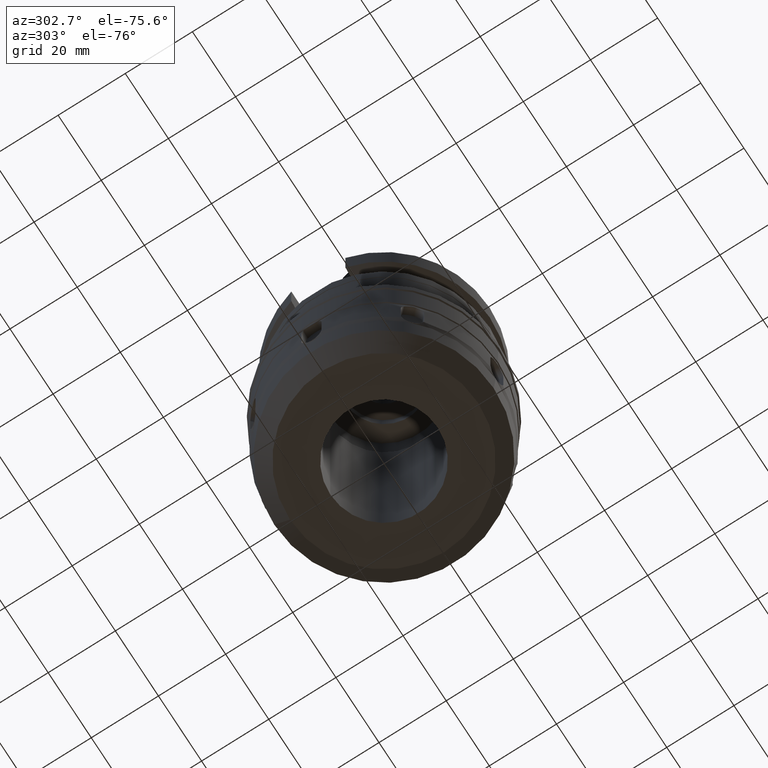
[diagram: clean part render]
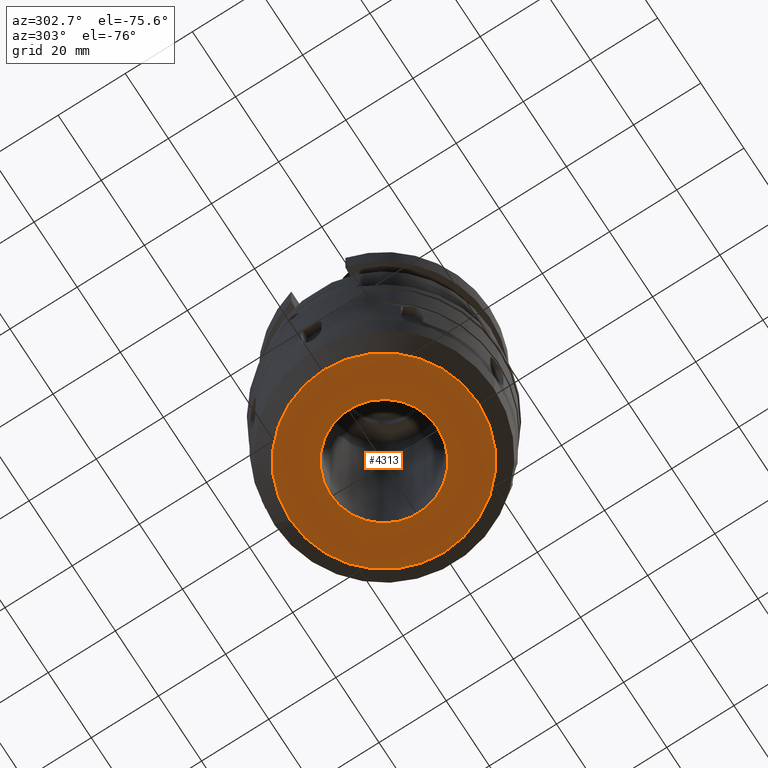
[diagram: same view with one face highlighted and labeled with its STEP entity id]
A machine part, auxiliary view. The second image highlights one B-rep face of the part: STEP entity #4313.
In plain terms, the highlighted planar face has unit normal (0, 0, -1).
Its self-contained STEP definition (entity closure, byte-faithful):
#2158=CARTESIAN_POINT('',(0.E0,0.E0,-9.E1));
#2159=DIRECTION('',(0.E0,0.E0,1.E0));
#2160=DIRECTION('',(0.E0,-1.E0,0.E0));
#2161=AXIS2_PLACEMENT_3D('',#2158,#2159,#2160);
#2166=CARTESIAN_POINT('',(0.E0,0.E0,-9.E1));
#2167=DIRECTION('',(0.E0,0.E0,1.E0));
#2168=DIRECTION('',(0.E0,1.E0,0.E0));
#2169=AXIS2_PLACEMENT_3D('',#2166,#2167,#2168);
#2174=CARTESIAN_POINT('',(0.E0,2.120720862083E-14,-9.E1));
#2175=DIRECTION('',(0.E0,0.E0,-1.E0));
#2176=DIRECTION('',(0.E0,-1.E0,0.E0));
#2177=AXIS2_PLACEMENT_3D('',#2174,#2175,#2176);
#2182=CARTESIAN_POINT('',(0.E0,2.120720862083E-14,-9.E1));
#2183=DIRECTION('',(0.E0,0.E0,-1.E0));
#2184=DIRECTION('',(0.E0,1.E0,0.E0));
#2185=AXIS2_PLACEMENT_3D('',#2182,#2183,#2184);
#2542=CARTESIAN_POINT('',(0.E0,1.6E1,-9.E1));
#2543=VERTEX_POINT('',#2542);
#2544=CARTESIAN_POINT('',(0.E0,-1.6E1,-9.E1));
#2545=VERTEX_POINT('',#2544);
#2546=CARTESIAN_POINT('',(0.E0,-2.8E1,-9.E1));
#2547=CARTESIAN_POINT('',(0.E0,2.8E1,-9.E1));
#2548=VERTEX_POINT('',#2546);
#2549=VERTEX_POINT('',#2547);
#4298=CARTESIAN_POINT('',(0.E0,0.E0,-9.E1));
#4299=DIRECTION('',(0.E0,0.E0,-1.E0));
#4300=DIRECTION('',(0.E0,-1.E0,0.E0));
#4301=AXIS2_PLACEMENT_3D('',#4298,#4299,#4300);
#4302=PLANE('',#4301);
#4303=ORIENTED_EDGE('',*,*,#4291,.T.);
#4304=ORIENTED_EDGE('',*,*,#4280,.T.);
#4305=EDGE_LOOP('',(#4303,#4304));
#4306=FACE_OUTER_BOUND('',#4305,.F.);
#4308=ORIENTED_EDGE('',*,*,#4307,.T.);
#4310=ORIENTED_EDGE('',*,*,#4309,.T.);
#4311=EDGE_LOOP('',(#4308,#4310));
#4312=FACE_BOUND('',#4311,.F.);
#2162=CIRCLE('',#2161,2.8E1);
#2170=CIRCLE('',#2169,2.8E1);
#2178=CIRCLE('',#2177,1.6E1);
#2186=CIRCLE('',#2185,1.6E1);
#4280=EDGE_CURVE('',#2549,#2548,#2170,.T.);
#4291=EDGE_CURVE('',#2548,#2549,#2162,.T.);
#4307=EDGE_CURVE('',#2545,#2543,#2178,.T.);
#4309=EDGE_CURVE('',#2543,#2545,#2186,.T.);
#4313=ADVANCED_FACE('',(#4306,#4312),#4302,.T.);